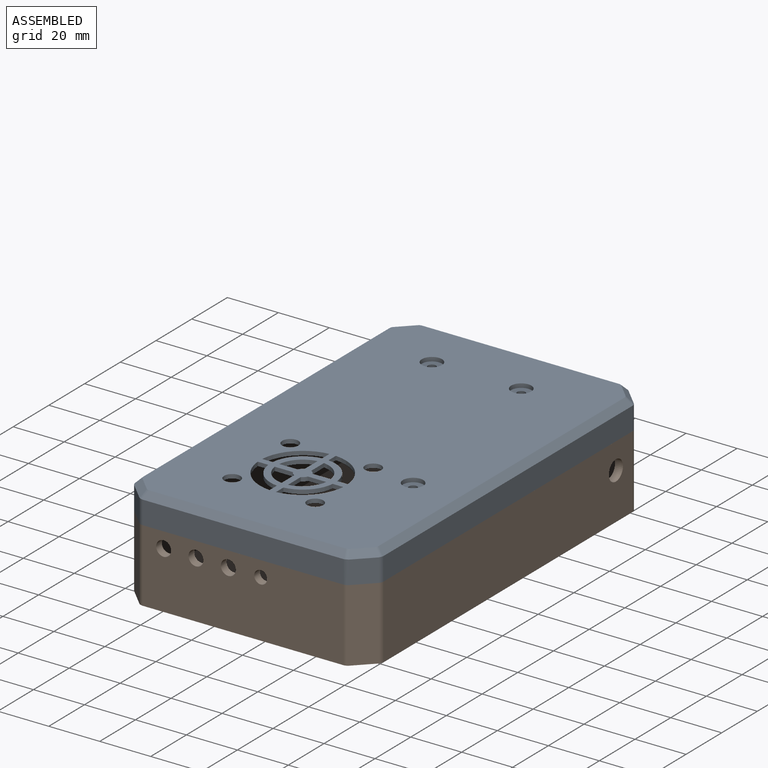
[diagram: assembled view]
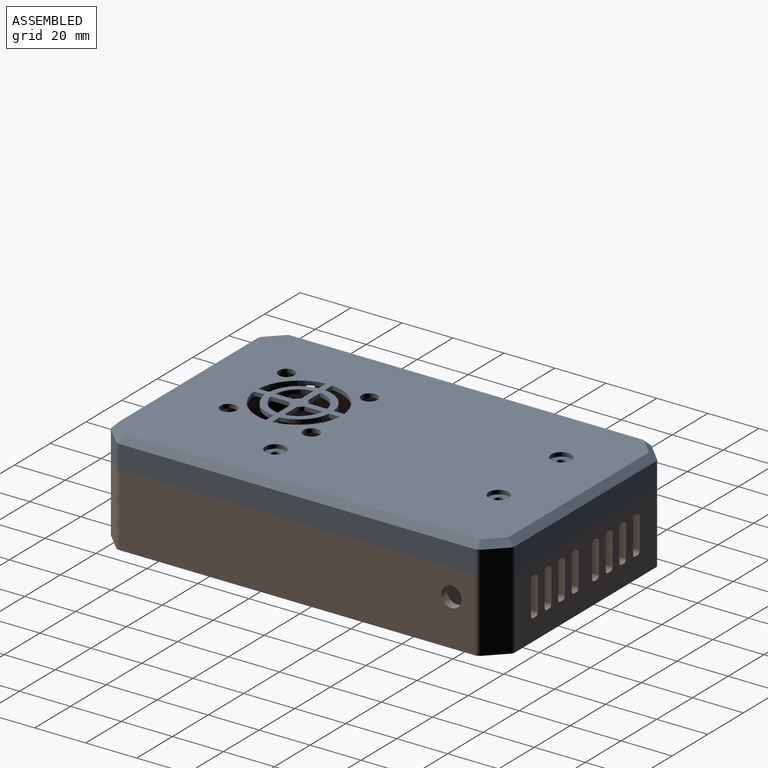
[diagram: assembled view, second angle]
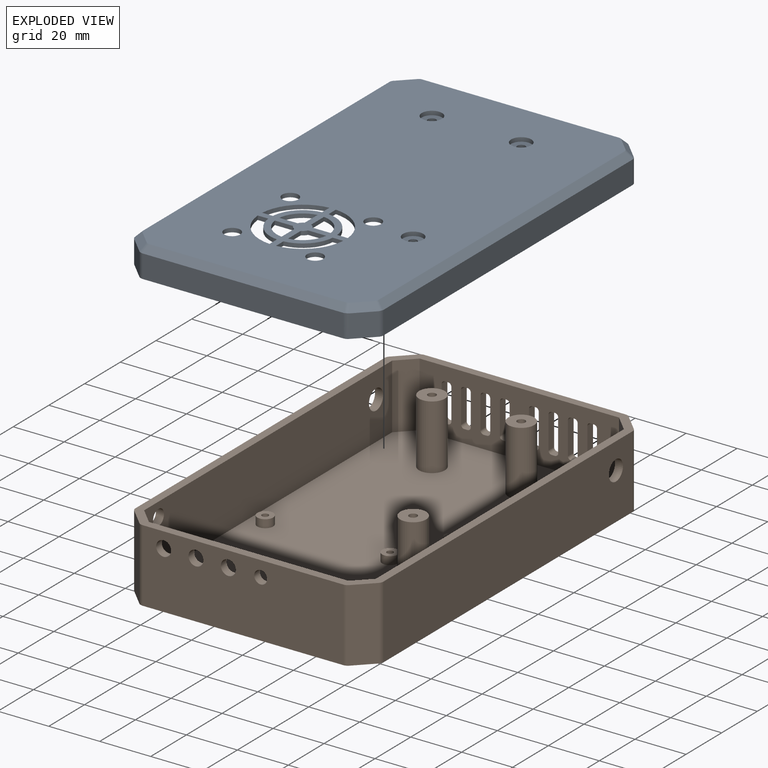
[diagram: exploded view]
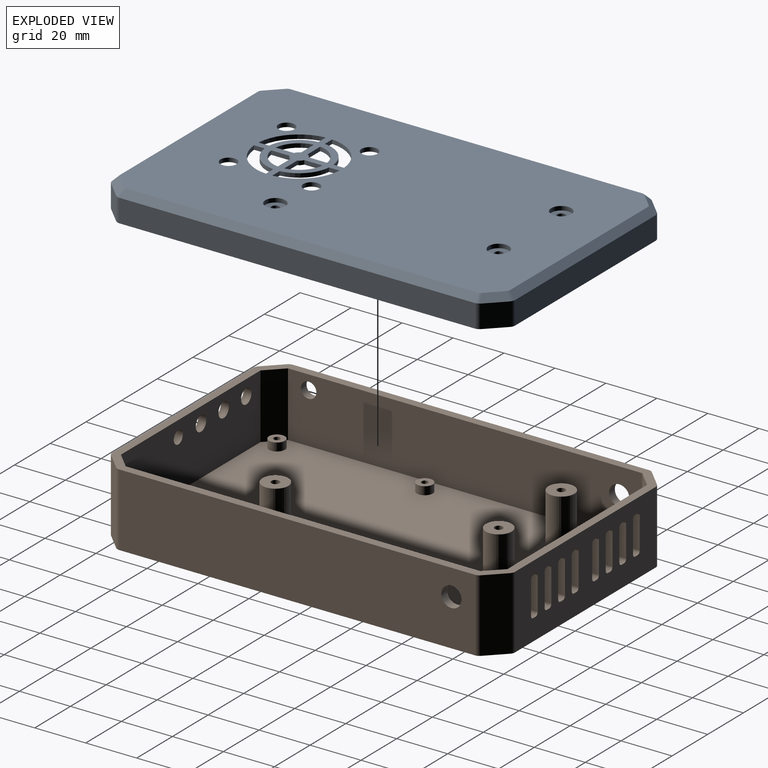
[diagram: exploded view, second angle]
ASSEMBLY  parts=2 mates=2
PART A: 94 faces, bbox 97.3x158.1x11.7 mm
  f0: plane 151.68x90.93mm, normal (0,0,-1), area 12778.6mm2, adj f3,f6,f9,f11,f12,f13,f14,f15
  f1: plane 152.95x92.2mm, normal (0,0,1), area 13172.8mm2, adj f28,f30,f32,f34,f35,f36,f37,f38
  f2: cylinder r=1.59mm len=10mm, axis (0,0,1), area 99.7mm2, adj f4,f33
  f3: cylinder r=5.08mm len=10.16mm, axis (0,0,1), area 319.2mm2, adj f0,f4
  f4: plane 10.16x10.16mm, normal (0,0,-1), area 73.2mm2, adj f2,f3
  f5: cylinder r=1.59mm len=10mm, axis (0,0,1), area 99.7mm2, adj f7,f31
  f6: cylinder r=5.08mm len=10.16mm, axis (0,0,1), area 319.2mm2, adj f0,f7
  f7: plane 10.16x10.16mm, normal (0,0,-1), area 73.2mm2, adj f5,f6
  f8: cylinder r=1.59mm len=10mm, axis (0,0,1), area 99.7mm2, adj f10,f29
  f9: cylinder r=5.08mm len=10.16mm, axis (0,0,1), area 319.2mm2, adj f0,f10
  f10: plane 10.16x10.16mm, normal (0,0,-1), area 73.2mm2, adj f8,f9
  f11: plane 78.23x10mm, normal (0,1,0), area 782.3mm2, adj f0,f12,f18,f19
  f12: plane 10x6.35mm, normal (0.71,0.71,0), area 89.8mm2, adj f0,f11,f13,f19
  f13: plane 138.98x10mm, normal (1,0,0), area 1389.7mm2, adj f0,f12,f14,f19
  f14: plane 10x6.35mm, normal (0.71,-0.71,0), area 89.8mm2, adj f0,f13,f15,f19
  f15: plane 78.23x10mm, normal (0,-1,0), area 782.3mm2, adj f0,f14,f16,f19
  f16: plane 10x6.35mm, normal (-0.71,-0.71,0), area 89.8mm2, adj f0,f15,f17,f19
  f17: plane 138.98x10mm, normal (-1,0,0), area 1389.7mm2, adj f0,f16,f18,f19
  f18: plane 10x6.35mm, normal (-0.71,0.71,0), area 89.8mm2, adj f0,f11,f17,f19
  f19: plane 158.03x97.28mm, normal (0,0,-1), area 1525.6mm2, adj f11,f12,f13,f14,f15,f16,f17,f18
  f20: plane 9.05x6.72mm, normal (0.71,-0.71,0), area 86mm2, adj f19,f77,f91,f93
  f21: plane 78.75x9.05mm, normal (0,-1,0), area 712.5mm2, adj f19,f75,f89,f93
  f22: plane 9.05x6.72mm, normal (-0.71,-0.71,0), area 86mm2, adj f19,f73,f87,f89
  f23: plane 139.5x9.05mm, normal (-1,0,0), area 1262.1mm2, adj f19,f71,f81,f87
  f24: plane 9.05x6.72mm, normal (-0.71,0.71,0), area 86mm2, adj f19,f70,f79,f81
  f25: plane 78.75x9.05mm, normal (0,1,0), area 712.5mm2, adj f19,f72,f79,f83
  f26: plane 9.05x6.72mm, normal (0.71,0.71,0), area 86mm2, adj f19,f74,f83,f85
  f27: plane 139.5x9.05mm, normal (1,0,0), area 1262.1mm2, adj f19,f76,f85,f91
  f28: cylinder r=3.97mm len=7.94mm, axis (0,0,1), area 39.6mm2, adj f1,f29
  f29: plane 7.94x7.94mm, normal (0,0,1), area 41.6mm2, adj f8,f28
  f30: cylinder r=3.97mm len=7.94mm, axis (0,0,1), area 39.6mm2, adj f1,f31
  f31: plane 7.94x7.94mm, normal (0,0,1), area 41.6mm2, adj f5,f30
  f32: cylinder r=3.97mm len=7.94mm, axis (0,0,1), area 39.6mm2, adj f1,f33
  f33: plane 7.94x7.94mm, normal (0,0,1), area 41.6mm2, adj f2,f32
  f34: cylinder r=12.7mm len=11.37mm, axis (0,0,1), area 27.6mm2, adj f0,f1,f35,f37
  f35: plane 4.14x1.59mm, normal (1,0,0), area 6.6mm2, adj f0,f1,f34,f36
  f36: cylinder r=16.83mm len=15.51mm, axis (0,0,1), area 37.9mm2, adj f0,f1,f35,f37
  f37: plane 4.14x1.59mm, normal (0,-1,0), area 6.6mm2, adj f0,f1,f34,f36
  f38: plane 4.14x1.59mm, normal (0,1,0), area 6.6mm2, adj f0,f1,f39,f41
  f39: cylinder r=16.83mm len=15.51mm, axis (0,0,1), area 37.9mm2, adj f0,f1,f38,f40
  f40: plane 4.14x1.59mm, normal (1,0,0), area 6.6mm2, adj f0,f1,f39,f41
  f41: cylinder r=12.7mm len=11.37mm, axis (0,0,1), area 27.6mm2, adj f0,f1,f38,f40
  f42: cylinder r=12.7mm len=11.37mm, axis (0,0,1), area 27.6mm2, adj f0,f1,f43,f45
  f43: plane 4.14x1.59mm, normal (-1,0,0), area 6.6mm2, adj f0,f1,f42,f44
  f44: cylinder r=16.83mm len=15.51mm, axis (0,0,1), area 37.9mm2, adj f0,f1,f43,f45
  f45: plane 4.14x1.59mm, normal (0,1,0), area 6.6mm2, adj f0,f1,f42,f44
  f46: cylinder r=12.7mm len=11.37mm, axis (0,0,1), area 27.6mm2, adj f0,f1,f47,f49
  f47: plane 4.14x1.59mm, normal (0,-1,0), area 6.6mm2, adj f0,f1,f46,f48
  f48: cylinder r=16.83mm len=15.51mm, axis (0,0,1), area 37.9mm2, adj f0,f1,f47,f49
  f49: plane 4.14x1.59mm, normal (-1,0,0), area 6.6mm2, adj f0,f1,f46,f48
  f50: plane 7.17x1.59mm, normal (-1,0,0), area 11.4mm2, adj f0,f1,f51,f53
  f51: cylinder r=10.16mm len=8.81mm, axis (0,0,1), area 21.3mm2, adj f0,f1,f50,f52
  f52: plane 7.17x1.59mm, normal (0,1,0), area 11.4mm2, adj f0,f1,f51,f53
  f53: cylinder r=3.17mm len=1.64mm, axis (0,0,1), area 3.8mm2, adj f0,f1,f50,f52
  f54: cylinder r=3.17mm len=1.64mm, axis (0,0,1), area 3.8mm2, adj f0,f1,f55,f57
  f55: plane 7.17x1.59mm, normal (0,1,0), area 11.4mm2, adj f0,f1,f54,f56
  f56: cylinder r=10.16mm len=8.81mm, axis (0,0,1), area 21.3mm2, adj f0,f1,f55,f57
  f57: plane 7.17x1.59mm, normal (1,0,0), area 11.4mm2, adj f0,f1,f54,f56
  f58: cylinder r=3.17mm len=1.64mm, axis (0,0,1), area 3.8mm2, adj f0,f1,f59,f61
  f59: plane 7.17x1.59mm, normal (1,0,0), area 11.4mm2, adj f0,f1,f58,f60
  f60: cylinder r=10.16mm len=8.81mm, axis (0,0,1), area 21.3mm2, adj f0,f1,f59,f61
  f61: plane 7.17x1.59mm, normal (0,-1,0), area 11.4mm2, adj f0,f1,f58,f60
  f62: cylinder r=3.17mm len=1.64mm, axis (0,0,1), area 3.8mm2, adj f0,f1,f63,f65
  f63: plane 7.17x1.59mm, normal (0,-1,0), area 11.4mm2, adj f0,f1,f62,f64
  f64: cylinder r=10.16mm len=8.81mm, axis (0,0,1), area 21.3mm2, adj f0,f1,f63,f65
  f65: plane 7.17x1.59mm, normal (-1,0,0), area 11.4mm2, adj f0,f1,f62,f64
  f66: cylinder r=3.17mm len=6.35mm, axis (0,0,1), area 31.7mm2, adj f0,f1
  f67: cylinder r=3.17mm len=6.35mm, axis (0,0,1), area 31.7mm2, adj f0,f1
  f68: cylinder r=3.17mm len=6.35mm, axis (0,0,1), area 31.7mm2, adj f0,f1
  f69: cylinder r=3.17mm len=6.35mm, axis (0,0,1), area 31.7mm2, adj f0,f1
  f70: plane 8.2x8.2mm, normal (-0.5,0.5,0.71), area 32.6mm2, adj f1,f24,f78,f79,f80,f81
  f71: plane 140.11x2.55mm, normal (-0.71,0,0.71), area 499.5mm2, adj f1,f23,f80,f81,f86,f87
  f72: plane 79.36x2.55mm, normal (0,0.71,0.71), area 281.3mm2, adj f1,f25,f78,f79,f82,f83
  f73: plane 8.2x8.2mm, normal (-0.5,-0.5,0.71), area 32.6mm2, adj f1,f22,f86,f87,f88,f89
  f74: plane 8.2x8.2mm, normal (0.5,0.5,0.71), area 32.6mm2, adj f1,f26,f82,f83,f84,f85
  f75: plane 79.36x2.55mm, normal (0,-0.71,0.71), area 281.3mm2, adj f1,f21,f88,f89,f92,f93
  f76: plane 140.11x2.55mm, normal (0.71,0,0.71), area 499.5mm2, adj f1,f27,f84,f85,f90,f91
  f77: plane 8.2x8.2mm, normal (0.5,-0.5,0.71), area 32.6mm2, adj f1,f20,f90,f91,f92,f93
  f78: cylinder r=2.54mm len=3.08mm, axis (0.28,-0.68,0.68), area 5.1mm2, adj f1,f70,f72,f79
  f79: cylinder r=2.54mm len=9.11mm, axis (0,0,-1), area 18.1mm2, adj f19,f24,f25,f70,f72,f78
  f80: cylinder r=2.54mm len=3.08mm, axis (0.68,-0.28,0.68), area 5.1mm2, adj f1,f70,f71,f81
  f81: cylinder r=2.54mm len=9.11mm, axis (0,0,1), area 18.1mm2, adj f19,f23,f24,f70,f71,f80
  f82: cylinder r=2.54mm len=3.08mm, axis (-0.28,-0.68,0.68), area 5.1mm2, adj f1,f72,f74,f83
  f83: cylinder r=2.54mm len=9.11mm, axis (0,0,-1), area 18.1mm2, adj f19,f25,f26,f72,f74,f82
  f84: cylinder r=2.54mm len=3.08mm, axis (-0.68,-0.28,0.68), area 5.1mm2, adj f1,f74,f76,f85
  f85: cylinder r=2.54mm len=9.11mm, axis (0,0,-1), area 18.1mm2, adj f19,f26,f27,f74,f76,f84
  f86: cylinder r=2.54mm len=3.08mm, axis (-0.68,-0.28,-0.68), area 5.1mm2, adj f1,f71,f73,f87
  f87: cylinder r=2.54mm len=9.11mm, axis (0,0,-1), area 18.1mm2, adj f19,f22,f23,f71,f73,f86
  f88: cylinder r=2.54mm len=3.08mm, axis (-0.28,-0.68,-0.68), area 5.1mm2, adj f1,f73,f75,f89
  f89: cylinder r=2.54mm len=9.11mm, axis (0,0,-1), area 18.1mm2, adj f19,f21,f22,f73,f75,f88
  f90: cylinder r=2.54mm len=3.08mm, axis (0.68,-0.28,-0.68), area 5.1mm2, adj f1,f76,f77,f91
  f91: cylinder r=2.54mm len=9.11mm, axis (0,0,1), area 18.1mm2, adj f19,f20,f27,f76,f77,f90
  f92: cylinder r=2.54mm len=3.08mm, axis (0.28,-0.68,-0.68), area 5.1mm2, adj f1,f75,f77,f93
  f93: cylinder r=2.54mm len=9.11mm, axis (0,0,-1), area 18.1mm2, adj f19,f20,f21,f75,f77,f92
PART B: 155 faces, bbox 97.3x158x28.6 mm
  f0: plane 78.75x28.58mm, normal (0,1,0), area 1802.5mm2, adj f9,f17,f67,f68,f69,f70,f71,f72
  f1: plane 78.23x25.4mm, normal (0,-1,0), area 1539.1mm2, adj f13,f14,f17,f18,f67,f68,f69,f70
  f2: plane 139.5x28.58mm, normal (1,0,0), area 3936.8mm2, adj f9,f17,f65,f135,f142
  f3: plane 28.58x6.72mm, normal (0.71,0.71,0), area 271.6mm2, adj f9,f17,f135,f136
  f4: plane 28.58x6.72mm, normal (-0.71,0.71,0), area 271.6mm2, adj f9,f17,f137,f138
  f5: plane 139.5x28.58mm, normal (-1,0,0), area 3907.6mm2, adj f9,f17,f64,f66,f138,f139
  f6: plane 28.58x6.72mm, normal (-0.71,-0.71,0), area 271.6mm2, adj f9,f17,f139,f140
  f7: plane 78.75x28.58mm, normal (0,-1,0), area 2149.6mm2, adj f9,f17,f131,f132,f133,f134,f140,f141
  f8: plane 28.58x6.72mm, normal (0.71,-0.71,0), area 271.6mm2, adj f9,f17,f141,f142
  f9: plane 158.03x97.28mm, normal (0,0,-1), area 15236mm2, adj f0,f2,f3,f4,f5,f6,f7,f8
  f10: plane 78.23x25.4mm, normal (0,1,0), area 1886.2mm2, adj f11,f16,f17,f18,f131,f132,f133,f134
  f11: plane 25.4x6.35mm, normal (0.71,0.71,0), area 228.1mm2, adj f10,f12,f17,f18
  f12: plane 138.98x25.4mm, normal (1,0,0), area 3451.3mm2, adj f11,f13,f17,f18,f64,f66
  f13: plane 25.4x6.35mm, normal (0.71,-0.71,0), area 228.1mm2, adj f1,f12,f17,f18
  f14: plane 25.4x6.35mm, normal (-0.71,-0.71,0), area 228.1mm2, adj f1,f15,f17,f18
  f15: plane 138.98x25.4mm, normal (-1,0,0), area 3480.5mm2, adj f14,f16,f17,f18,f65
  f16: plane 25.4x6.35mm, normal (-0.71,0.71,0), area 228.1mm2, adj f10,f15,f17,f18
  f17: plane 158.03x97.28mm, normal (0,0,1), area 1525.6mm2, adj f0,f1,f2,f3,f4,f5,f6,f7
  f18: plane 151.68x90.93mm, normal (0,0,1), area 13164.3mm2, adj f1,f10,f11,f12,f13,f14,f15,f16
  f19: cylinder r=3.1mm len=6.2mm, axis (0,0,-1), area 61.8mm2, adj f18,f20
  f20: plane 6.2x6.2mm, normal (0,0,1), area 25.1mm2, adj f19,f62
  f21: cylinder r=3.1mm len=6.2mm, axis (0,0,-1), area 61.8mm2, adj f18,f22
  f22: plane 6.2x6.2mm, normal (0,0,1), area 25.1mm2, adj f21,f60
  f23: cylinder r=3.1mm len=6.2mm, axis (0,0,-1), area 61.8mm2, adj f18,f24
  f24: plane 6.2x6.2mm, normal (0,0,1), area 25.1mm2, adj f23,f58
  f25: cylinder r=3.1mm len=6.2mm, axis (0,0,-1), area 61.8mm2, adj f18,f26
  f26: plane 6.2x6.2mm, normal (0,0,1), area 25.1mm2, adj f25,f56
  f27: cylinder r=2.54mm len=5.08mm, axis (0,0,-1), area 50.7mm2, adj f18,f28
  f28: plane 5.08x5.08mm, normal (0,0,1), area 15.2mm2, adj f27,f54
  f29: cylinder r=2.54mm len=5.08mm, axis (0,0,-1), area 50.7mm2, adj f18,f30
  f30: plane 5.08x5.08mm, normal (0,0,1), area 15.2mm2, adj f29,f52
  f31: cylinder r=2.54mm len=5.08mm, axis (0,0,-1), area 50.7mm2, adj f18,f32
  f32: plane 5.08x5.08mm, normal (0,0,1), area 15.2mm2, adj f31,f50
  f33: cylinder r=2.54mm len=5.08mm, axis (0,0,-1), area 50.7mm2, adj f18,f34
  f34: plane 5.08x5.08mm, normal (0,0,1), area 15.2mm2, adj f33,f48
  f35: cylinder r=2.54mm len=5.08mm, axis (0,0,-1), area 50.7mm2, adj f18,f36
  f36: plane 5.08x5.08mm, normal (0,0,1), area 15.2mm2, adj f35,f46
  f37: cylinder r=2.54mm len=5.08mm, axis (0,0,-1), area 50.7mm2, adj f18,f38
  f38: plane 5.08x5.08mm, normal (0,0,1), area 15.2mm2, adj f37,f44
  f39: plane 19.05x3.18mm, normal (0,1,0), area 60.5mm2, adj f18,f40,f42,f43
  f40: plane 3.18x3.18mm, normal (-1,0,0), area 10.1mm2, adj f18,f39,f41,f43
  f41: plane 19.05x3.18mm, normal (0,-1,0), area 60.5mm2, adj f18,f40,f42,f43
  f42: plane 3.18x3.18mm, normal (1,0,0), area 10.1mm2, adj f18,f39,f41,f43
  f43: plane 19.05x3.18mm, normal (0,0,1), area 60.5mm2, adj f39,f40,f41,f42
  f44: cylinder r=1.27mm len=5.08mm, axis (0,0,1), area 40.5mm2, adj f38,f45
  f45: plane 2.54x2.54mm, normal (0,0,1), area 5.1mm2, adj f44
  f46: cylinder r=1.27mm len=5.08mm, axis (0,0,1), area 40.5mm2, adj f36,f47
  f47: plane 2.54x2.54mm, normal (0,0,1), area 5.1mm2, adj f46
  f48: cylinder r=1.27mm len=5.08mm, axis (0,0,1), area 40.5mm2, adj f34,f49
  f49: plane 2.54x2.54mm, normal (0,0,1), area 5.1mm2, adj f48
  f50: cylinder r=1.27mm len=5.08mm, axis (0,0,1), area 40.5mm2, adj f32,f51
  f51: plane 2.54x2.54mm, normal (0,0,1), area 5.1mm2, adj f50
  f52: cylinder r=1.27mm len=5.08mm, axis (0,0,1), area 40.5mm2, adj f30,f53
  f53: plane 2.54x2.54mm, normal (0,0,1), area 5.1mm2, adj f52
  f54: cylinder r=1.27mm len=5.08mm, axis (0,0,1), area 40.5mm2, adj f28,f55
  f55: plane 2.54x2.54mm, normal (0,0,1), area 5.1mm2, adj f54
  f56: cylinder r=1.27mm len=5.08mm, axis (0,0,1), area 40.5mm2, adj f26,f57
  f57: plane 2.54x2.54mm, normal (0,0,1), area 5.1mm2, adj f56
  f58: cylinder r=1.27mm len=5.08mm, axis (0,0,1), area 40.5mm2, adj f24,f59
  f59: plane 2.54x2.54mm, normal (0,0,1), area 5.1mm2, adj f58
  f60: cylinder r=1.27mm len=5.08mm, axis (0,0,1), area 40.5mm2, adj f22,f61
  f61: plane 2.54x2.54mm, normal (0,0,1), area 5.1mm2, adj f60
  f62: cylinder r=1.27mm len=5.08mm, axis (0,0,1), area 40.5mm2, adj f20,f63
  f63: plane 2.54x2.54mm, normal (0,0,1), area 5.1mm2, adj f62
  f64: cylinder r=3.05mm len=6.1mm, axis (-1,0,0), area 60.8mm2, adj f5,f12
  f65: cylinder r=3.97mm len=7.94mm, axis (-1,0,0), area 79.2mm2, adj f2,f15
  f66: cylinder r=3.97mm len=7.94mm, axis (-1,0,0), area 79.2mm2, adj f5,f12
  f67: cylinder r=1.27mm len=3.18mm, axis (0,1,0), area 6.3mm2, adj f0,f1,f68,f74
  f68: plane 3.18x1.27mm, normal (0,0,1), area 4mm2, adj f0,f1,f67,f69
  f69: cylinder r=1.27mm len=3.18mm, axis (0,1,0), area 6.3mm2, adj f0,f1,f68,f70
  f70: plane 12.7x3.18mm, normal (1,0,0), area 40.3mm2, adj f0,f1,f69,f71
  f71: cylinder r=1.27mm len=3.18mm, axis (0,1,0), area 6.3mm2, adj f0,f1,f70,f72
  f72: plane 3.18x1.27mm, normal (0,0,-1), area 4mm2, adj f0,f1,f71,f73
  f73: cylinder r=1.27mm len=3.18mm, axis (0,1,0), area 6.3mm2, adj f0,f1,f72,f74
  f74: plane 12.7x3.18mm, normal (-1,0,0), area 40.3mm2, adj f0,f1,f67,f73
  f75: cylinder r=1.27mm len=3.18mm, axis (0,1,0), area 6.3mm2, adj f0,f1,f76,f82
  f76: plane 3.18x1.27mm, normal (0,0,1), area 4mm2, adj f0,f1,f75,f77
  f77: cylinder r=1.27mm len=3.18mm, axis (0,1,0), area 6.3mm2, adj f0,f1,f76,f78
  f78: plane 12.33x3.18mm, normal (1,0,0), area 39.1mm2, adj f0,f1,f77,f79
  f79: cylinder r=1.27mm len=3.18mm, axis (0,1,0), area 6.3mm2, adj f0,f1,f78,f80
  f80: plane 3.18x1.27mm, normal (0,0,-1), area 4mm2, adj f0,f1,f79,f81
  f81: cylinder r=1.27mm len=3.18mm, axis (0,1,0), area 6.3mm2, adj f0,f1,f80,f82
  f82: plane 12.33x3.18mm, normal (-1,0,0), area 39.1mm2, adj f0,f1,f75,f81
  f83: plane 12.7x3.18mm, normal (-1,0,0), area 40.3mm2, adj f0,f1,f84,f88
  f84: cylinder r=1.27mm len=3.18mm, axis (0,1,0), area 6.3mm2, adj f0,f1,f83,f85
  f85: plane 3.18x1.27mm, normal (0,0,1), area 4mm2, adj f0,f1,f84,f86
  f86: cylinder r=1.27mm len=3.18mm, axis (0,1,0), area 6.3mm2, adj f0,f1,f85,f87
  f87: plane 12.7x3.18mm, normal (1,0,0), area 40.3mm2, adj f0,f1,f86,f89
  f88: cylinder r=1.27mm len=3.18mm, axis (0,1,0), area 6.3mm2, adj f0,f1,f83,f90
  f89: cylinder r=1.27mm len=3.18mm, axis (0,1,0), area 6.3mm2, adj f0,f1,f87,f90
  f90: plane 3.18x1.27mm, normal (0,0,-1), area 4mm2, adj f0,f1,f88,f89
  f91: plane 12.7x3.18mm, normal (-1,0,0), area 40.3mm2, adj f0,f1,f92,f96
  f92: cylinder r=1.27mm len=3.18mm, axis (0,1,0), area 6.3mm2, adj f0,f1,f91,f93
  f93: plane 3.18x1.27mm, normal (0,0,1), area 4mm2, adj f0,f1,f92,f94
  f94: cylinder r=1.27mm len=3.18mm, axis (0,1,0), area 6.3mm2, adj f0,f1,f93,f95
  f95: plane 12.7x3.18mm, normal (1,0,0), area 40.3mm2, adj f0,f1,f94,f97
  f96: cylinder r=1.27mm len=3.18mm, axis (0,1,0), area 6.3mm2, adj f0,f1,f91,f98
  f97: cylinder r=1.27mm len=3.18mm, axis (0,1,0), area 6.3mm2, adj f0,f1,f95,f98
  f98: plane 3.18x1.27mm, normal (0,0,-1), area 4mm2, adj f0,f1,f96,f97
  f99: plane 12.7x3.18mm, normal (-1,0,0), area 40.3mm2, adj f0,f1,f100,f104
  f100: cylinder r=1.27mm len=3.18mm, axis (0,1,0), area 6.3mm2, adj f0,f1,f99,f101
  f101: plane 3.18x1.27mm, normal (0,0,1), area 4mm2, adj f0,f1,f100,f102
  f102: cylinder r=1.27mm len=3.18mm, axis (0,1,0), area 6.3mm2, adj f0,f1,f101,f103
  f103: plane 12.7x3.18mm, normal (1,0,0), area 40.3mm2, adj f0,f1,f102,f105
  f104: cylinder r=1.27mm len=3.18mm, axis (0,1,0), area 6.3mm2, adj f0,f1,f99,f106
  f105: cylinder r=1.27mm len=3.18mm, axis (0,1,0), area 6.3mm2, adj f0,f1,f103,f106
  f106: plane 3.18x1.27mm, normal (0,0,-1), area 4mm2, adj f0,f1,f104,f105
  f107: plane 12.33x3.18mm, normal (1,0,0), area 39.1mm2, adj f0,f1,f108,f114
  f108: cylinder r=1.27mm len=3.18mm, axis (0,1,0), area 6.3mm2, adj f0,f1,f107,f109
  f109: plane 3.18x1.27mm, normal (0,0,-1), area 4mm2, adj f0,f1,f108,f110
  f110: cylinder r=1.27mm len=3.18mm, axis (0,1,0), area 6.3mm2, adj f0,f1,f109,f111
  f111: plane 12.33x3.18mm, normal (-1,0,0), area 39.1mm2, adj f0,f1,f110,f112
  f112: cylinder r=1.27mm len=3.18mm, axis (0,1,0), area 6.3mm2, adj f0,f1,f111,f113
  f113: plane 3.18x1.27mm, normal (0,0,1), area 4mm2, adj f0,f1,f112,f114
  f114: cylinder r=1.27mm len=3.18mm, axis (0,1,0), area 6.3mm2, adj f0,f1,f107,f113
  f115: plane 12.33x3.18mm, normal (1,0,0), area 39.1mm2, adj f0,f1,f116,f122
  f116: cylinder r=1.27mm len=3.18mm, axis (0,1,0), area 6.3mm2, adj f0,f1,f115,f117
  f117: plane 3.18x1.27mm, normal (0,0,-1), area 4mm2, adj f0,f1,f116,f118
  f118: cylinder r=1.27mm len=3.18mm, axis (0,1,0), area 6.3mm2, adj f0,f1,f117,f119
  f119: plane 12.33x3.18mm, normal (-1,0,0), area 39.1mm2, adj f0,f1,f118,f120
  f120: cylinder r=1.27mm len=3.18mm, axis (0,1,0), area 6.3mm2, adj f0,f1,f119,f121
  f121: plane 3.18x1.27mm, normal (0,0,1), area 4mm2, adj f0,f1,f120,f122
  f122: cylinder r=1.27mm len=3.18mm, axis (0,1,0), area 6.3mm2, adj f0,f1,f115,f121
  f123: plane 12.33x3.18mm, normal (1,0,0), area 39.1mm2, adj f0,f1,f124,f130
  f124: cylinder r=1.27mm len=3.18mm, axis (0,1,0), area 6.3mm2, adj f0,f1,f123,f125
  f125: plane 3.18x1.27mm, normal (0,0,-1), area 4mm2, adj f0,f1,f124,f126
  f126: cylinder r=1.27mm len=3.18mm, axis (0,1,0), area 6.3mm2, adj f0,f1,f125,f127
  f127: plane 12.33x3.18mm, normal (-1,0,0), area 39.1mm2, adj f0,f1,f126,f128
  f128: cylinder r=1.27mm len=3.18mm, axis (0,1,0), area 6.3mm2, adj f0,f1,f127,f129
  f129: plane 3.18x1.27mm, normal (0,0,1), area 4mm2, adj f0,f1,f128,f130
  f130: cylinder r=1.27mm len=3.18mm, axis (0,1,0), area 6.3mm2, adj f0,f1,f123,f129
  f131: cylinder r=2.54mm len=5.08mm, axis (0,-1,0), area 50.7mm2, adj f7,f10
  f132: cylinder r=2.92mm len=5.84mm, axis (0,-1,0), area 58.3mm2, adj f7,f10
  f133: cylinder r=2.92mm len=5.84mm, axis (0,-1,0), area 58.3mm2, adj f7,f10
  f134: cylinder r=2.92mm len=5.84mm, axis (0,-1,0), area 58.3mm2, adj f7,f10
  f135: cylinder r=2.54mm len=28.58mm, axis (0,0,1), area 57mm2, adj f2,f3,f9,f17
  f136: cylinder r=2.54mm len=28.58mm, axis (0,0,1), area 57mm2, adj f0,f3,f9,f17
  f137: cylinder r=2.54mm len=28.58mm, axis (0,0,1), area 57mm2, adj f0,f4,f9,f17
  f138: cylinder r=2.54mm len=28.58mm, axis (0,0,-1), area 57mm2, adj f4,f5,f9,f17
  f139: cylinder r=2.54mm len=28.58mm, axis (0,0,1), area 57mm2, adj f5,f6,f9,f17
  f140: cylinder r=2.54mm len=28.58mm, axis (0,0,1), area 57mm2, adj f6,f7,f9,f17
  f141: cylinder r=2.54mm len=28.58mm, axis (0,0,1), area 57mm2, adj f7,f8,f9,f17
  f142: cylinder r=2.54mm len=28.58mm, axis (0,0,-1), area 57mm2, adj f2,f8,f9,f17
  f143: cylinder r=1.59mm len=25.4mm, axis (0,0,-1), area 253.4mm2, adj f145,f146
  f144: cylinder r=5.08mm len=25.4mm, axis (0,0,-1), area 810.7mm2, adj f18,f145
  f145: plane 10.16x10.16mm, normal (0,0,1), area 73.2mm2, adj f143,f144
  f146: plane 3.18x3.18mm, normal (0,0,1), area 7.9mm2, adj f143
  f147: cylinder r=1.59mm len=25.4mm, axis (0,0,-1), area 253.4mm2, adj f149,f150
  f148: cylinder r=5.08mm len=25.4mm, axis (0,0,-1), area 810.7mm2, adj f18,f149
  f149: plane 10.16x10.16mm, normal (0,0,1), area 73.2mm2, adj f147,f148
  f150: plane 3.18x3.18mm, normal (0,0,1), area 7.9mm2, adj f147
  f151: cylinder r=1.59mm len=25.4mm, axis (0,0,-1), area 253.4mm2, adj f153,f154
  f152: cylinder r=5.08mm len=25.4mm, axis (0,0,-1), area 810.7mm2, adj f18,f153
  f153: plane 10.16x10.16mm, normal (0,0,1), area 73.2mm2, adj f151,f152
  f154: plane 3.18x3.18mm, normal (0,0,1), area 7.9mm2, adj f151
PLACE A t=(-13.29,49.71,117.92)mm
PLACE B t=(-27.57,15.54,82.52)mm
MATE planar A.f10 <-> B.f17  axis (0,0,-1) through (-13.29,49.71,107.92)mm
MATE slider A.f2 <-> B.f143  axis (0,0,1) through (-33.35,105.22,117.92)mm
